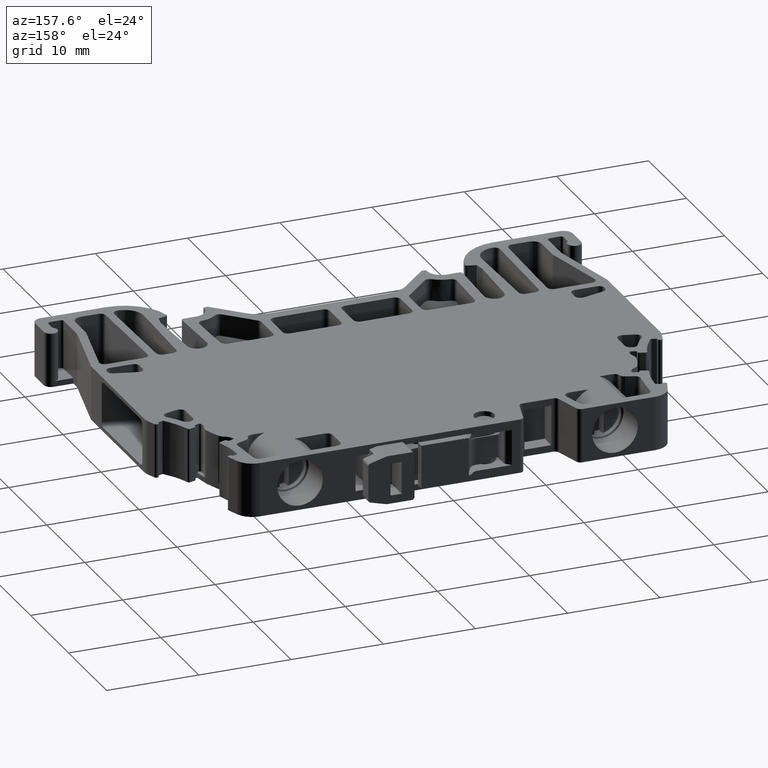
[diagram: clean part render]
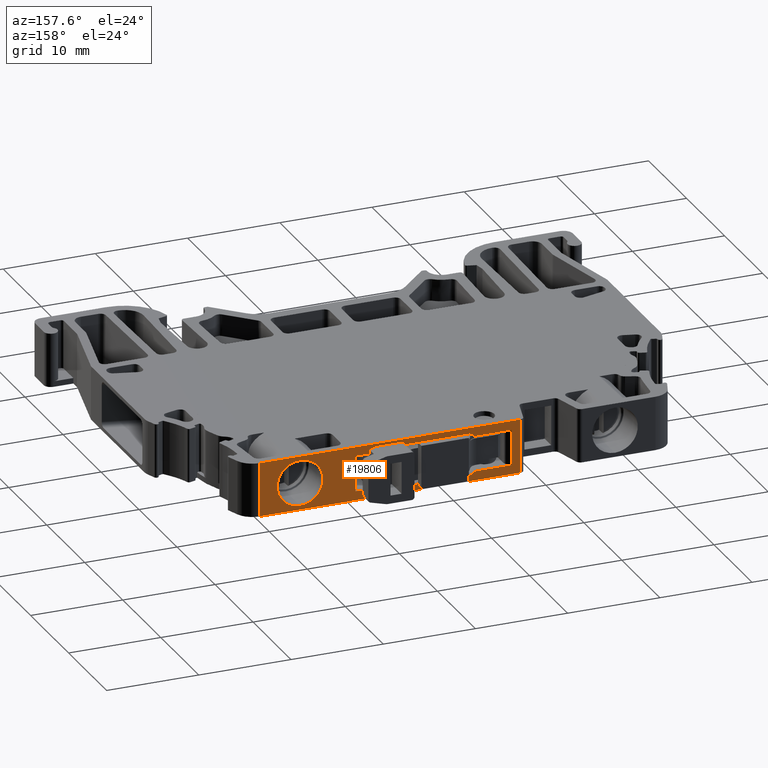
[diagram: same view with one face highlighted and labeled with its STEP entity id]
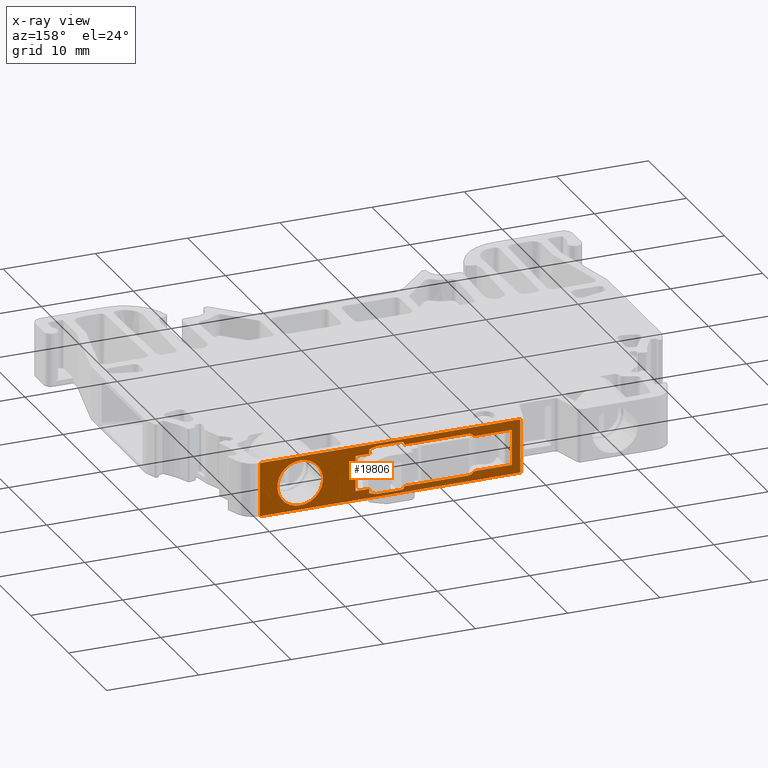
[diagram: x-ray of the same camera — body ghosted, the highlighted face saturated]
A machine part, auxiliary view. The second image highlights one B-rep face of the part: STEP entity #19806.
The next image is the same camera in x-ray: the body ghosted, the highlighted face saturated — about 0% of this face is hidden behind the body in this view.
In plain terms, the highlighted planar face has unit normal (-0, 1, 0).
Its self-contained STEP definition (entity closure, byte-faithful):
#168 = CARTESIAN_POINT ( 'NONE',  ( 1024.724725917476000, 968.4757356738468800, -0.6410252164753947900 ) ) ;
#180 = CARTESIAN_POINT ( 'NONE',  ( 1017.325157624110000, 968.4757349748009600, -5.028144470975649800 ) ) ;
#212 = CARTESIAN_POINT ( 'NONE',  ( 1028.524725917403900, 968.4757356738468800, -1.000000000000000000 ) ) ;
#1829 = CARTESIAN_POINT ( 'NONE',  ( 1025.024725944020000, 968.4757349748016400, -5.549999973454869300 ) ) ;
#1846 = CARTESIAN_POINT ( 'NONE',  ( 1025.024725917476000, 968.4757356738468800, -0.2999999999999999900 ) ) ;
#1849 = CARTESIAN_POINT ( 'NONE',  ( 1028.524725917403900, 968.4757356738468800, -5.335640357778400400 ) ) ;
#1860 = CARTESIAN_POINT ( 'NONE',  ( 1017.709181905522200, 968.4757349748009600, -5.208974596215580500 ) ) ;
#1867 = CARTESIAN_POINT ( 'NONE',  ( 1024.724725917476000, 968.4757356738468800, -5.249999973454869500 ) ) ;
#1870 = CARTESIAN_POINT ( 'NONE',  ( 1027.724726115368000, 968.4757356738468800, -0.2999999999999999900 ) ) ;
#1874 = CARTESIAN_POINT ( 'NONE',  ( 1024.724725917476000, 968.4757356738468800, -5.208974596215580500 ) ) ;
#1879 = CARTESIAN_POINT ( 'NONE',  ( 1016.938383655042100, 968.4757349748009600, -4.850000000000000500 ) ) ;
#1884 = CARTESIAN_POINT ( 'NONE',  ( 1024.724725917474900, 968.4757349748016400, -0.5999999999999999800 ) ) ;
#1902 = CARTESIAN_POINT ( 'NONE',  ( 1028.524725917403900, 968.4757356738468800, -4.850000000000000500 ) ) ;
#1906 = CARTESIAN_POINT ( 'NONE',  ( 1028.524725917403900, 968.4757356738468800, -0.5143593009007241300 ) ) ;
#1926 = CARTESIAN_POINT ( 'NONE',  ( 1027.724726115368000, 968.4757356738468800, -5.549999734548469700 ) ) ;
#4858 = CIRCLE ( 'NONE', #4859, 2.474720116931949900 ) ;
#4859 = AXIS2_PLACEMENT_3D ( 'NONE', #39537, #39528, #39539 ) ;
#5343 = CARTESIAN_POINT ( 'NONE',  ( 1017.561721609850500, 968.4757349748009600, -0.6410254037842799700 ) ) ;
#5356 = CARTESIAN_POINT ( 'NONE',  ( 1017.709181905522200, 968.4757349748009600, -0.6410254037844170800 ) ) ;
#5407 = CARTESIAN_POINT ( 'NONE',  ( 1017.419404753609600, 968.4757349748017500, -0.7110088465337749400 ) ) ;
#5425 = CARTESIAN_POINT ( 'NONE',  ( 1017.325157624110000, 968.4757349748009600, -0.8218555290241980100 ) ) ;
#5555 = DIRECTION ( 'NONE',  ( 0.0000000000000000000, 0.0000000000000000000, 1.000000000000000000 ) ) ;
#5563 = CARTESIAN_POINT ( 'NONE',  ( 1040.394187838060100, 968.4757349748009600, -5.850000000000000500 ) ) ;
#5572 = LINE ( 'NONE', #5563, #7112 ) ;
#5609 = CARTESIAN_POINT ( 'NONE',  ( 1012.150122431183900, 968.4757349748019800, -5.850000000000000500 ) ) ;
#5612 = DIRECTION ( 'NONE',  ( 0.0000000000000000000, 0.0000000000000000000, 1.000000000000000000 ) ) ;
#5628 = LINE ( 'NONE', #5609, #7104 ) ;
#7104 = VECTOR ( 'NONE', #5612, 1000.000000000000000 ) ;
#7112 = VECTOR ( 'NONE', #5555, 1000.000000000000000 ) ;
#7583 = VECTOR ( 'NONE', #9095, 1000.000000000000000 ) ;
#7613 = VECTOR ( 'NONE', #27844, 1000.000000000000200 ) ;
#7620 = VECTOR ( 'NONE', #8599, 1000.000000000000000 ) ;
#7654 = CIRCLE ( 'NONE', #7681, 0.2999999999999999900 ) ;
#7655 = VECTOR ( 'NONE', #9097, 1000.000000000000000 ) ;
#7670 = VECTOR ( 'NONE', #27968, 1000.000000000000000 ) ;
#7673 = VECTOR ( 'NONE', #28266, 1000.000000000000000 ) ;
#7676 = VECTOR ( 'NONE', #28024, 1000.000000000000000 ) ;
#7678 = VECTOR ( 'NONE', #28013, 1000.000000000000000 ) ;
#7681 = AXIS2_PLACEMENT_3D ( 'NONE', #27930, #27950, #27928 ) ;
#7692 = VECTOR ( 'NONE', #28165, 1000.000000000000100 ) ;
#7694 = VECTOR ( 'NONE', #28034, 1000.000000000000000 ) ;
#7699 = VECTOR ( 'NONE', #28197, 1000.000000000000000 ) ;
#7700 = CIRCLE ( 'NONE', #7707, 0.2999999999999999300 ) ;
#7701 = VECTOR ( 'NONE', #28256, 1000.000000000000000 ) ;
#7707 = AXIS2_PLACEMENT_3D ( 'NONE', #28134, #28108, #28126 ) ;
#7710 = VECTOR ( 'NONE', #28131, 1000.000000000000000 ) ;
#7716 = VECTOR ( 'NONE', #27985, 1000.000000000000000 ) ;
#7720 = VECTOR ( 'NONE', #28025, 1000.000000000000000 ) ;
#8498 = CARTESIAN_POINT ( 'NONE',  ( 1018.224651805481800, 968.4757349748009600, -0.6410254037844160800 ) ) ;
#8599 = DIRECTION ( 'NONE',  ( -1.000000000000000000, -6.118276962092250100E-014, 0.0000000000000000000 ) ) ;
#8616 = CARTESIAN_POINT ( 'NONE',  ( 1017.325157624110000, 968.4757349748009600, -0.8218555290241980100 ) ) ;
#8634 = CARTESIAN_POINT ( 'NONE',  ( 1017.086033723695600, 968.4757349748009600, -0.9999999999998688800 ) ) ;
#8651 = CARTESIAN_POINT ( 'NONE',  ( 1016.938383655042100, 968.4757349748009600, -1.000000000000000000 ) ) ;
#8655 = CARTESIAN_POINT ( 'NONE',  ( 1017.229499530097000, 968.4757349748009600, -0.9343616863050281400 ) ) ;
#8694 = LINE ( 'NONE', #8828, #7655 ) ;
#8828 = CARTESIAN_POINT ( 'NONE',  ( 1012.150122431183900, 968.4757349748019800, -1.000000000000000000 ) ) ;
#9086 = CARTESIAN_POINT ( 'NONE',  ( 1030.299328273029900, 968.4757349748019800, -1.000000000000000000 ) ) ;
#9095 = DIRECTION ( 'NONE',  ( 1.000000000000000000, 6.118276962092250100E-014, 0.0000000000000000000 ) ) ;
#9097 = DIRECTION ( 'NONE',  ( -1.000000000000000000, 3.930818770710470200E-014, 0.0000000000000000000 ) ) ;
#9112 = LINE ( 'NONE', #9086, #7583 ) ;
#9130 = LINE ( 'NONE', #8498, #7620 ) ;
#9132 = CARTESIAN_POINT ( 'NONE',  ( 1017.086049876007200, 968.4757349748009600, -4.850000000000066300 ) ) ;
#9133 = CARTESIAN_POINT ( 'NONE',  ( 1017.325157624110000, 968.4757349748009600, -5.028144470975649800 ) ) ;
#9150 = CARTESIAN_POINT ( 'NONE',  ( 1016.938383655042100, 968.4757349748009600, -4.850000000000000500 ) ) ;
#9151 = CARTESIAN_POINT ( 'NONE',  ( 1017.229491979892100, 968.4757349748009600, -4.915629433687889200 ) ) ;
#11008 = EDGE_CURVE ( 'NONE', #12158, #12227, #4858, .T. ) ;
#12158 = VERTEX_POINT ( 'NONE', #41504 ) ;
#12227 = VERTEX_POINT ( 'NONE', #41611 ) ;
#12346 = VERTEX_POINT ( 'NONE', #41748 ) ;
#12350 = VERTEX_POINT ( 'NONE', #41689 ) ;
#12362 = VERTEX_POINT ( 'NONE', #41764 ) ;
#14510 = EDGE_CURVE ( 'NONE', #12227, #12158, #33151, .T. ) ;
#14574 = EDGE_CURVE ( 'NONE', #17944, #17923, #36402, .T. ) ;
#14696 = EDGE_CURVE ( 'NONE', #12346, #17796, #25786, .T. ) ;
#14784 = EDGE_CURVE ( 'NONE', #18166, #18164, #26046, .T. ) ;
#15436 = EDGE_LOOP ( 'NONE', ( #19043, #23444, #23427, #23425 ) ) ;
#15487 = EDGE_LOOP ( 'NONE', ( #18958, #19046 ) ) ;
#15503 = EDGE_LOOP ( 'NONE', ( #23176, #23136, #23191, #23213, #23130, #23150, #23184, #23107, #23259, #23206, #23185, #23186, #23183, #23147, #23149, #23157, #23224, #23218, #23156, #23172, #23131, #23193 ) ) ;
#17783 = VERTEX_POINT ( 'NONE', #21120 ) ;
#17791 = VERTEX_POINT ( 'NONE', #21108 ) ;
#17796 = VERTEX_POINT ( 'NONE', #21117 ) ;
#17917 = VERTEX_POINT ( 'NONE', #21209 ) ;
#17923 = VERTEX_POINT ( 'NONE', #21226 ) ;
#17944 = VERTEX_POINT ( 'NONE', #21299 ) ;
#18164 = VERTEX_POINT ( 'NONE', #21514 ) ;
#18166 = VERTEX_POINT ( 'NONE', #21482 ) ;
#18958 = ORIENTED_EDGE ( 'NONE', *, *, #14510, .F. ) ;
#19043 = ORIENTED_EDGE ( 'NONE', *, *, #28023, .F. ) ;
#19046 = ORIENTED_EDGE ( 'NONE', *, *, #11008, .F. ) ;
#19806 = ADVANCED_FACE ( 'NONE', ( #22372, #22369, #22381 ), #22375, .T. ) ;
#20225 = EDGE_CURVE ( 'NONE', #12350, #17783, #41740, .T. ) ;
#20287 = EDGE_CURVE ( 'NONE', #12346, #12362, #5572, .T. ) ;
#20306 = EDGE_CURVE ( 'NONE', #17796, #17791, #5628, .T. ) ;
#20595 = EDGE_CURVE ( 'NONE', #17783, #17917, #41914, .T. ) ;
#21108 = CARTESIAN_POINT ( 'NONE',  ( 1012.150122431183900, 968.4757349748019800, 0.0000000000000000000 ) ) ;
#21117 = CARTESIAN_POINT ( 'NONE',  ( 1012.150122431183900, 968.4757349748019800, -5.850000000000000500 ) ) ;
#21120 = CARTESIAN_POINT ( 'NONE',  ( 1017.325157624110000, 968.4757349748009600, -0.8218555290241980100 ) ) ;
#21209 = CARTESIAN_POINT ( 'NONE',  ( 1016.938383655042100, 968.4757349748009600, -1.000000000000000000 ) ) ;
#21226 = CARTESIAN_POINT ( 'NONE',  ( 1013.062829939526100, 968.4757349748019800, -4.850000000000000500 ) ) ;
#21299 = CARTESIAN_POINT ( 'NONE',  ( 1013.062829939526100, 968.4757349748019800, -1.000000000000000000 ) ) ;
#21482 = CARTESIAN_POINT ( 'NONE',  ( 1030.011458289991900, 968.4757349748009600, -4.850000000000000500 ) ) ;
#21514 = CARTESIAN_POINT ( 'NONE',  ( 1030.011458289991900, 968.4757349748009600, -1.000000000000000000 ) ) ;
#22369 = FACE_OUTER_BOUND ( 'NONE', #15436, .T. ) ;
#22372 = FACE_BOUND ( 'NONE', #15487, .T. ) ;
#22375 = PLANE ( 'NONE',  #27154 ) ;
#22376 = CARTESIAN_POINT ( 'NONE',  ( 1030.299328273029900, 968.4757349748019800, -5.850000000000000500 ) ) ;
#22380 = DIRECTION ( 'NONE',  ( -6.118276962092250100E-014, 1.000000000000000000, 0.0000000000000000000 ) ) ;
#22381 = FACE_BOUND ( 'NONE', #15503, .T. ) ;
#22434 = DIRECTION ( 'NONE',  ( 1.000000000000000000, 6.118276962092250100E-014, 0.0000000000000000000 ) ) ;
#23107 = ORIENTED_EDGE ( 'NONE', *, *, #27959, .T. ) ;
#23130 = ORIENTED_EDGE ( 'NONE', *, *, #28042, .F. ) ;
#23131 = ORIENTED_EDGE ( 'NONE', *, *, #27929, .T. ) ;
#23136 = ORIENTED_EDGE ( 'NONE', *, *, #28052, .T. ) ;
#23147 = ORIENTED_EDGE ( 'NONE', *, *, #14574, .T. ) ;
#23149 = ORIENTED_EDGE ( 'NONE', *, *, #27995, .F. ) ;
#23150 = ORIENTED_EDGE ( 'NONE', *, *, #28033, .T. ) ;
#23156 = ORIENTED_EDGE ( 'NONE', *, *, #27984, .F. ) ;
#23157 = ORIENTED_EDGE ( 'NONE', *, *, #27838, .T. ) ;
#23172 = ORIENTED_EDGE ( 'NONE', *, *, #28011, .T. ) ;
#23176 = ORIENTED_EDGE ( 'NONE', *, *, #28000, .T. ) ;
#23183 = ORIENTED_EDGE ( 'NONE', *, *, #27850, .T. ) ;
#23184 = ORIENTED_EDGE ( 'NONE', *, *, #28047, .T. ) ;
#23185 = ORIENTED_EDGE ( 'NONE', *, *, #20225, .T. ) ;
#23186 = ORIENTED_EDGE ( 'NONE', *, *, #20595, .T. ) ;
#23191 = ORIENTED_EDGE ( 'NONE', *, *, #14784, .T. ) ;
#23193 = ORIENTED_EDGE ( 'NONE', *, *, #28003, .T. ) ;
#23206 = ORIENTED_EDGE ( 'NONE', *, *, #27848, .T. ) ;
#23213 = ORIENTED_EDGE ( 'NONE', *, *, #27816, .F. ) ;
#23218 = ORIENTED_EDGE ( 'NONE', *, *, #27972, .F. ) ;
#23224 = ORIENTED_EDGE ( 'NONE', *, *, #28005, .T. ) ;
#23259 = ORIENTED_EDGE ( 'NONE', *, *, #27970, .T. ) ;
#23425 = ORIENTED_EDGE ( 'NONE', *, *, #20306, .T. ) ;
#23427 = ORIENTED_EDGE ( 'NONE', *, *, #14696, .T. ) ;
#23444 = ORIENTED_EDGE ( 'NONE', *, *, #20287, .F. ) ;
#25786 = LINE ( 'NONE', #25816, #26547 ) ;
#25808 = DIRECTION ( 'NONE',  ( -1.000000000000000000, 3.930818770710470200E-014, 0.0000000000000000000 ) ) ;
#25816 = CARTESIAN_POINT ( 'NONE',  ( 1012.150122431183900, 968.4757349748019800, -5.850000000000000500 ) ) ;
#26046 = LINE ( 'NONE', #26075, #26678 ) ;
#26075 = CARTESIAN_POINT ( 'NONE',  ( 1030.011458289991900, 968.4757349748009600, -13.05178911299028000 ) ) ;
#26076 = DIRECTION ( 'NONE',  ( 0.0000000000000000000, 0.0000000000000000000, 1.000000000000000000 ) ) ;
#26547 = VECTOR ( 'NONE', #25808, 1000.000000000000000 ) ;
#26678 = VECTOR ( 'NONE', #26076, 1000.000000000000000 ) ;
#27154 = AXIS2_PLACEMENT_3D ( 'NONE', #22376, #22380, #22434 ) ;
#27816 = EDGE_CURVE ( 'NONE', #39752, #18164, #9112, .T. ) ;
#27838 = EDGE_CURVE ( 'NONE', #39779, #39703, #40302, .T. ) ;
#27844 = DIRECTION ( 'NONE',  ( 0.9999999999999960000, 0.0000000000000000000, 8.848384638327044200E-008 ) ) ;
#27848 = EDGE_CURVE ( 'NONE', #39642, #12350, #9130, .T. ) ;
#27850 = EDGE_CURVE ( 'NONE', #17917, #17944, #8694, .T. ) ;
#27875 = CARTESIAN_POINT ( 'NONE',  ( 1028.324726528627900, 968.4757356738468800, -5.549999681458119800 ) ) ;
#27894 = LINE ( 'NONE', #27875, #7613 ) ;
#27929 = EDGE_CURVE ( 'NONE', #39830, #39900, #27894, .T. ) ;
#27928 = DIRECTION ( 'NONE',  ( 0.0000000000000000000, 0.0000000000000000000, 1.000000000000000000 ) ) ;
#27930 = CARTESIAN_POINT ( 'NONE',  ( 1025.024725917476000, 968.4757356738468800, -0.5999999999999999800 ) ) ;
#27939 = LINE ( 'NONE', #27960, #7716 ) ;
#27948 = LINE ( 'NONE', #27954, #7670 ) ;
#27950 = DIRECTION ( 'NONE',  ( -0.0000000000000000000, -1.000000000000000000, -0.0000000000000000000 ) ) ;
#27954 = CARTESIAN_POINT ( 'NONE',  ( 1018.224651805481800, 968.4757349748009600, -5.208974596215580500 ) ) ;
#27959 = EDGE_CURVE ( 'NONE', #39854, #39798, #7654, .T. ) ;
#27960 = CARTESIAN_POINT ( 'NONE',  ( 1024.724725917476000, 968.4757356738468800, -1.175000000000000000 ) ) ;
#27968 = DIRECTION ( 'NONE',  ( -1.000000000000000000, -6.118276962092250100E-014, 0.0000000000000000000 ) ) ;
#27970 = EDGE_CURVE ( 'NONE', #39798, #39642, #27939, .T. ) ;
#27972 = EDGE_CURVE ( 'NONE', #39801, #39806, #27948, .T. ) ;
#27984 = EDGE_CURVE ( 'NONE', #39869, #39801, #28079, .T. ) ;
#27985 = DIRECTION ( 'NONE',  ( 0.0000000000000000000, 0.0000000000000000000, -1.000000000000000000 ) ) ;
#27995 = EDGE_CURVE ( 'NONE', #39779, #17923, #28054, .T. ) ;
#28000 = EDGE_CURVE ( 'NONE', #39861, #39918, #28057, .T. ) ;
#28003 = EDGE_CURVE ( 'NONE', #39900, #39861, #28038, .T. ) ;
#28005 = EDGE_CURVE ( 'NONE', #39703, #39806, #40410, .T. ) ;
#28011 = EDGE_CURVE ( 'NONE', #39869, #39830, #7700, .T. ) ;
#28013 = DIRECTION ( 'NONE',  ( -1.000000000000000000, 3.930818770710470200E-014, 0.0000000000000000000 ) ) ;
#28023 = EDGE_CURVE ( 'NONE', #12362, #17791, #28167, .T. ) ;
#28024 = DIRECTION ( 'NONE',  ( 0.0000000000000000000, 0.0000000000000000000, 1.000000000000000000 ) ) ;
#28025 = DIRECTION ( 'NONE',  ( 0.9659258033877585700, -0.0000000000000000000, 0.2588191305713569100 ) ) ;
#28031 = CARTESIAN_POINT ( 'NONE',  ( 1017.325157624110000, 968.4757349748009600, -5.028144470975649800 ) ) ;
#28033 = EDGE_CURVE ( 'NONE', #39916, #39814, #28140, .T. ) ;
#28034 = DIRECTION ( 'NONE',  ( 0.0000000000000000000, 0.0000000000000000000, 1.000000000000000000 ) ) ;
#28036 = CARTESIAN_POINT ( 'NONE',  ( 1017.419892994229000, 968.4757349748017500, -5.139565386901656700 ) ) ;
#28038 = LINE ( 'NONE', #28039, #7720 ) ;
#28039 = CARTESIAN_POINT ( 'NONE',  ( 1029.724726115368000, 968.4757356738468800, -5.014101160012820000 ) ) ;
#28041 = CARTESIAN_POINT ( 'NONE',  ( 1017.561781005454200, 968.4757349748009600, -5.208974596215552000 ) ) ;
#28042 = EDGE_CURVE ( 'NONE', #39916, #39752, #28239, .T. ) ;
#28047 = EDGE_CURVE ( 'NONE', #39814, #39854, #28288, .T. ) ;
#28048 = CARTESIAN_POINT ( 'NONE',  ( 1017.709181905522200, 968.4757349748009600, -5.208974596215580500 ) ) ;
#28052 = EDGE_CURVE ( 'NONE', #39918, #18166, #28254, .T. ) ;
#28054 = LINE ( 'NONE', #28097, #7678 ) ;
#28056 = CARTESIAN_POINT ( 'NONE',  ( 1024.724725917474900, 968.4757349748016400, -1.175000000000000000 ) ) ;
#28057 = LINE ( 'NONE', #28059, #7676 ) ;
#28059 = CARTESIAN_POINT ( 'NONE',  ( 1028.524725917403900, 968.4757356738468800, -1.175000000000000000 ) ) ;
#28079 = LINE ( 'NONE', #28056, #7694 ) ;
#28097 = CARTESIAN_POINT ( 'NONE',  ( 1012.150122431183900, 968.4757349748019800, -4.850000000000000500 ) ) ;
#28108 = DIRECTION ( 'NONE',  ( -0.0000000000000000000, -1.000000000000000000, -0.0000000000000000000 ) ) ;
#28126 = DIRECTION ( 'NONE',  ( 0.0000000000000000000, 0.0000000000000000000, 1.000000000000000000 ) ) ;
#28131 = DIRECTION ( 'NONE',  ( -1.000000000000000000, 3.930818770710470200E-014, 0.0000000000000000000 ) ) ;
#28134 = CARTESIAN_POINT ( 'NONE',  ( 1025.024725917474100, 968.4757356738468800, -5.249999973454869500 ) ) ;
#28140 = LINE ( 'NONE', #28149, #7692 ) ;
#28149 = CARTESIAN_POINT ( 'NONE',  ( 1027.724726115368000, 968.4757356738468800, -0.2999999999999894400 ) ) ;
#28163 = CARTESIAN_POINT ( 'NONE',  ( 1012.150122431183900, 968.4757349748019800, 0.0000000000000000000 ) ) ;
#28165 = DIRECTION ( 'NONE',  ( -0.9659258262890684200, -0.0000000000000000000, 0.2588190451025204100 ) ) ;
#28167 = LINE ( 'NONE', #28163, #7710 ) ;
#28197 = DIRECTION ( 'NONE',  ( -1.000000000000000000, 0.0000000000000000000, 0.0000000000000000000 ) ) ;
#28203 = CARTESIAN_POINT ( 'NONE',  ( 1028.324726141509900, 968.4757356738468800, -0.2999999999999999900 ) ) ;
#28239 = LINE ( 'NONE', #28243, #7673 ) ;
#28243 = CARTESIAN_POINT ( 'NONE',  ( 1028.524726115369700, 968.4757349748018700, -1.175000000000000000 ) ) ;
#28247 = CARTESIAN_POINT ( 'NONE',  ( 1030.299328273029900, 968.4757349748019800, -4.850000000000000500 ) ) ;
#28254 = LINE ( 'NONE', #28247, #7701 ) ;
#28256 = DIRECTION ( 'NONE',  ( 1.000000000000000000, 6.118276962092250100E-014, 0.0000000000000000000 ) ) ;
#28266 = DIRECTION ( 'NONE',  ( 0.0000000000000000000, 0.0000000000000000000, -1.000000000000000000 ) ) ;
#28288 = LINE ( 'NONE', #28203, #7699 ) ;
#33151 = CIRCLE ( 'NONE', #33266, 2.474720116931949900 ) ;
#33266 = AXIS2_PLACEMENT_3D ( 'NONE', #35988, #35991, #35983 ) ;
#33433 = VECTOR ( 'NONE', #36367, 1000.000000000000000 ) ;
#35983 = DIRECTION ( 'NONE',  ( -1.000000000000000000, 4.486256918627075500E-014, 0.0000000000000000000 ) ) ;
#35988 = CARTESIAN_POINT ( 'NONE',  ( 1036.018792461973800, 968.4757349748009600, -2.925000000000000300 ) ) ;
#35991 = DIRECTION ( 'NONE',  ( 3.930818770710470200E-014, 1.000000000000000000, 0.0000000000000000000 ) ) ;
#36367 = DIRECTION ( 'NONE',  ( 0.0000000000000000000, 0.0000000000000000000, -1.000000000000000000 ) ) ;
#36382 = CARTESIAN_POINT ( 'NONE',  ( 1013.062829939526100, 968.4757349748019800, -5.850000000000000500 ) ) ;
#36402 = LINE ( 'NONE', #36382, #33433 ) ;
#39528 = DIRECTION ( 'NONE',  ( 3.930818770710470200E-014, 1.000000000000000000, 0.0000000000000000000 ) ) ;
#39537 = CARTESIAN_POINT ( 'NONE',  ( 1036.018792461973800, 968.4757349748009600, -2.925000000000000300 ) ) ;
#39539 = DIRECTION ( 'NONE',  ( -1.000000000000000000, 4.486256918627075500E-014, 0.0000000000000000000 ) ) ;
#39642 = VERTEX_POINT ( 'NONE', #168 ) ;
#39703 = VERTEX_POINT ( 'NONE', #180 ) ;
#39752 = VERTEX_POINT ( 'NONE', #212 ) ;
#39779 = VERTEX_POINT ( 'NONE', #1879 ) ;
#39798 = VERTEX_POINT ( 'NONE', #1884 ) ;
#39801 = VERTEX_POINT ( 'NONE', #1874 ) ;
#39806 = VERTEX_POINT ( 'NONE', #1860 ) ;
#39814 = VERTEX_POINT ( 'NONE', #1870 ) ;
#39830 = VERTEX_POINT ( 'NONE', #1829 ) ;
#39854 = VERTEX_POINT ( 'NONE', #1846 ) ;
#39861 = VERTEX_POINT ( 'NONE', #1849 ) ;
#39869 = VERTEX_POINT ( 'NONE', #1867 ) ;
#39900 = VERTEX_POINT ( 'NONE', #1926 ) ;
#39916 = VERTEX_POINT ( 'NONE', #1906 ) ;
#39918 = VERTEX_POINT ( 'NONE', #1902 ) ;
#40302 = B_SPLINE_CURVE_WITH_KNOTS ( 'NONE', 3,
 ( #9150, #9132, #9151, #9133 ),
 .UNSPECIFIED., .F., .F.,
 ( 4, 4 ),
 ( 0.0000000000000000000, 0.0004367284160224421300 ),
 .UNSPECIFIED. ) ;
#40410 = B_SPLINE_CURVE_WITH_KNOTS ( 'NONE', 3,
 ( #28031, #28036, #28041, #28048 ),
 .UNSPECIFIED., .F., .F.,
 ( 4, 4 ),
 ( 0.0002046077706545365400, 0.0006401813457327914400 ),
 .UNSPECIFIED. ) ;
#41504 = CARTESIAN_POINT ( 'NONE',  ( 1036.018792461973800, 968.4757349748009600, -5.399720116931950600 ) ) ;
#41611 = CARTESIAN_POINT ( 'NONE',  ( 1036.018792461973800, 968.4757349748009600, -0.4502798830680501700 ) ) ;
#41689 = CARTESIAN_POINT ( 'NONE',  ( 1017.709181905522200, 968.4757349748009600, -0.6410254037844170800 ) ) ;
#41740 = B_SPLINE_CURVE_WITH_KNOTS ( 'NONE', 3,
 ( #5356, #5343, #5407, #5425 ),
 .UNSPECIFIED., .F., .F.,
 ( 4, 4 ),
 ( 0.0000000000000000000, 0.0004359207159013798000 ),
 .UNSPECIFIED. ) ;
#41748 = CARTESIAN_POINT ( 'NONE',  ( 1040.394187838060100, 968.4757349748009600, -5.850000000000000500 ) ) ;
#41764 = CARTESIAN_POINT ( 'NONE',  ( 1040.394187838060100, 968.4757349748009600, 0.0000000000000000000 ) ) ;
#41914 = B_SPLINE_CURVE_WITH_KNOTS ( 'NONE', 3,
 ( #8616, #8655, #8634, #8651 ),
 .UNSPECIFIED., .F., .F.,
 ( 4, 4 ),
 ( 5.225854471380131400E-017, 0.0004366989771289963300 ),
 .UNSPECIFIED. ) ;